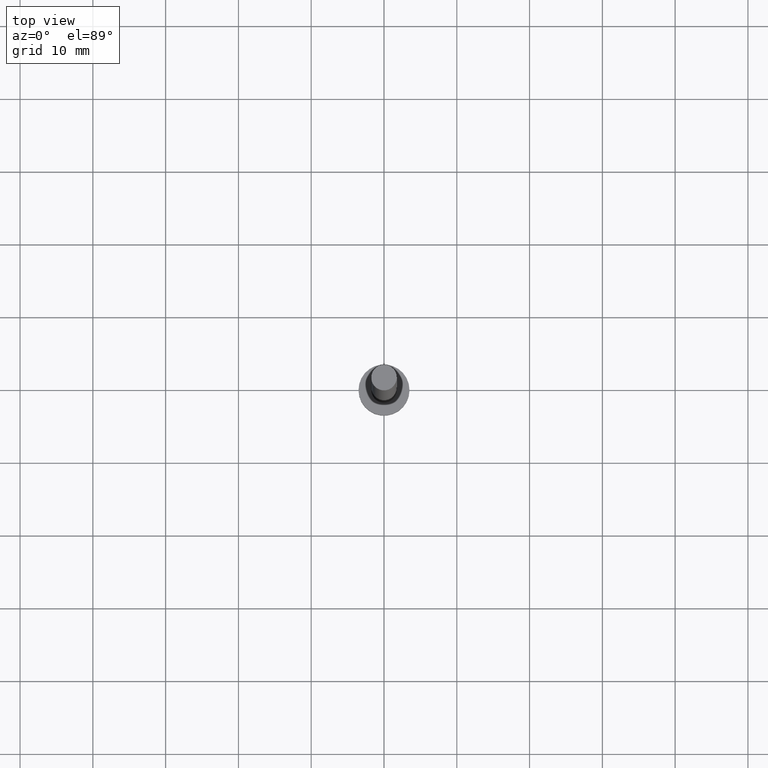
[diagram: clean part render]
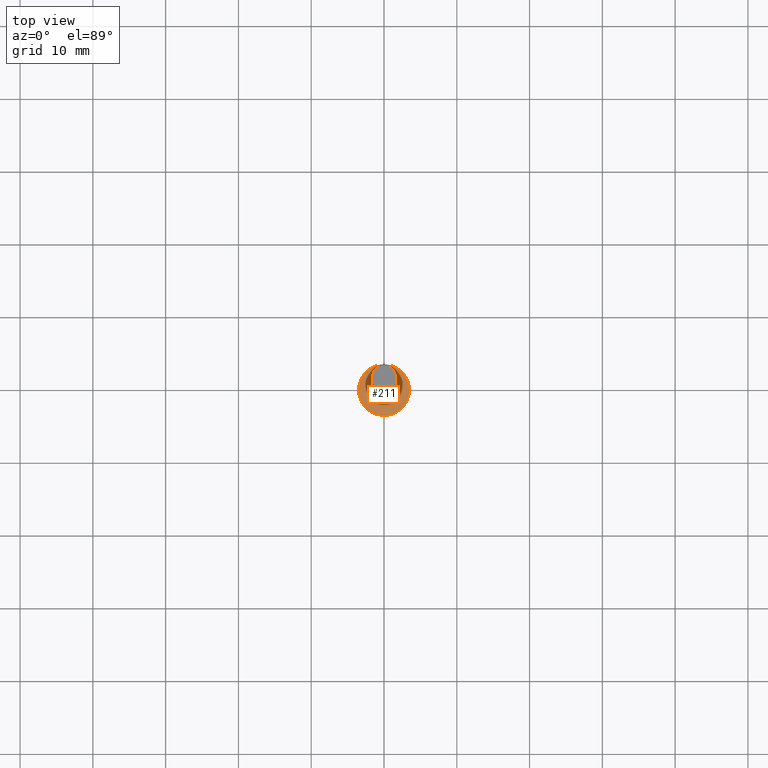
[diagram: same view with one face highlighted and labeled with its STEP entity id]
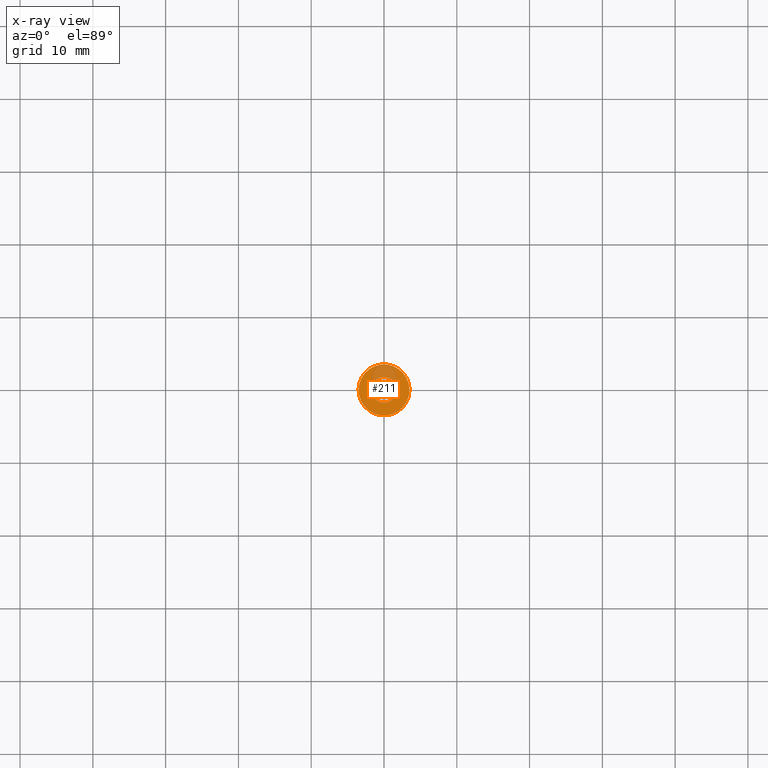
[diagram: x-ray of the same camera — body ghosted, the highlighted face saturated]
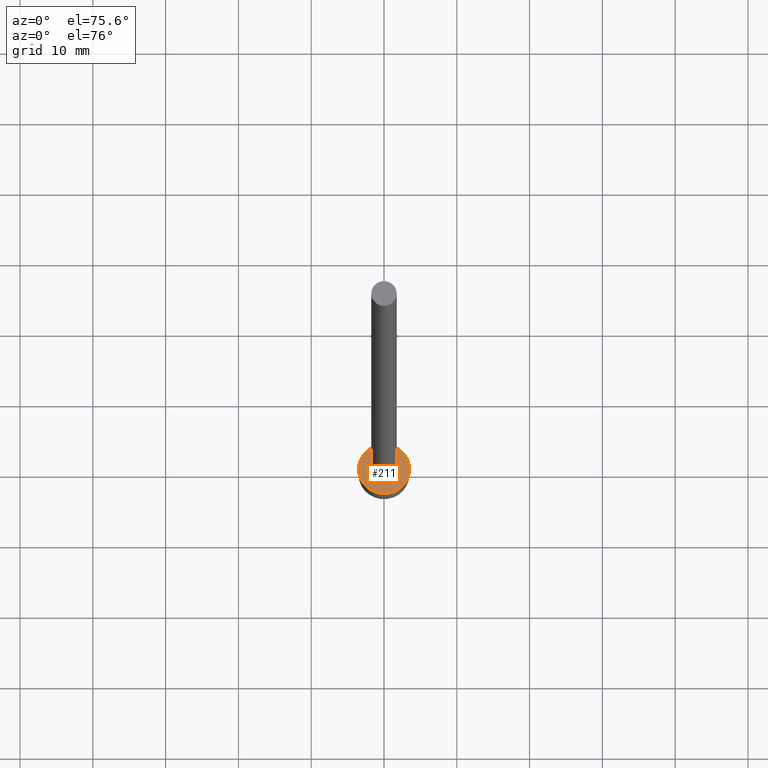
[diagram: same view with one face highlighted and labeled with its STEP entity id]
A machine part, top view. The second image highlights one B-rep face of the part: STEP entity #211.
The next image is the same camera in x-ray: the body ghosted, the highlighted face saturated — about 21% of this face is hidden behind the body in this view.
A second angle (auxiliary view) of the same face is appended — the face is thin or edge-on in the first view.
In plain terms, the highlighted planar face has unit normal (0, 0, 1).
Its self-contained STEP definition (entity closure, byte-faithful):
#3 = FACE_BOUND ( 'NONE', #95, .T. ) ;
#5 = CARTESIAN_POINT ( 'NONE',  ( 0.000000000000000000, 0.000000000000000000, 3.000000000000000000 ) ) ;
#6 = CIRCLE ( 'NONE', #126, 3.500000000000000444 ) ;
#8 = DIRECTION ( 'NONE',  ( 1.000000000000000000, 0.000000000000000000, 0.000000000000000000 ) ) ;
#21 = EDGE_CURVE ( 'NONE', #230, #169, #223, .T. ) ;
#37 = AXIS2_PLACEMENT_3D ( 'NONE', #237, #240, #188 ) ;
#40 = AXIS2_PLACEMENT_3D ( 'NONE', #235, #65, #140 ) ;
#41 = CARTESIAN_POINT ( 'NONE',  ( 0.000000000000000000, 0.000000000000000000, 3.000000000000000000 ) ) ;
#42 = DIRECTION ( 'NONE',  ( 1.000000000000000000, 0.000000000000000000, 0.000000000000000000 ) ) ;
#46 = CARTESIAN_POINT ( 'NONE',  ( -1.750000000000000000, 0.000000000000000000, 3.000000000000000000 ) ) ;
#51 = CARTESIAN_POINT ( 'NONE',  ( 1.750000000000000000, 2.143131898507867804E-16, 3.000000000000000000 ) ) ;
#54 = EDGE_CURVE ( 'NONE', #118, #121, #6, .T. ) ;
#55 = CIRCLE ( 'NONE', #82, 3.500000000000000444 ) ;
#59 = ORIENTED_EDGE ( 'NONE', *, *, #198, .F. ) ;
#62 = DIRECTION ( 'NONE',  ( 0.000000000000000000, 0.000000000000000000, 1.000000000000000000 ) ) ;
#65 = DIRECTION ( 'NONE',  ( 0.000000000000000000, 0.000000000000000000, 1.000000000000000000 ) ) ;
#66 = CARTESIAN_POINT ( 'NONE',  ( 0.000000000000000000, 0.000000000000000000, 3.000000000000000000 ) ) ;
#69 = EDGE_LOOP ( 'NONE', ( #159, #214 ) ) ;
#82 = AXIS2_PLACEMENT_3D ( 'NONE', #5, #200, #8 ) ;
#84 = FACE_OUTER_BOUND ( 'NONE', #69, .T. ) ;
#95 = EDGE_LOOP ( 'NONE', ( #59, #229 ) ) ;
#118 = VERTEX_POINT ( 'NONE', #255 ) ;
#121 = VERTEX_POINT ( 'NONE', #162 ) ;
#126 = AXIS2_PLACEMENT_3D ( 'NONE', #41, #62, #42 ) ;
#138 = EDGE_CURVE ( 'NONE', #121, #118, #55, .T. ) ;
#140 = DIRECTION ( 'NONE',  ( 1.000000000000000000, 0.000000000000000000, 0.000000000000000000 ) ) ;
#142 = DIRECTION ( 'NONE',  ( 0.000000000000000000, 0.000000000000000000, 1.000000000000000000 ) ) ;
#144 = PLANE ( 'NONE',  #239 ) ;
#159 = ORIENTED_EDGE ( 'NONE', *, *, #54, .T. ) ;
#162 = CARTESIAN_POINT ( 'NONE',  ( 3.500000000000000444, 4.286263797015737088E-16, 3.000000000000000000 ) ) ;
#169 = VERTEX_POINT ( 'NONE', #46 ) ;
#188 = DIRECTION ( 'NONE',  ( 1.000000000000000000, 0.000000000000000000, 0.000000000000000000 ) ) ;
#198 = EDGE_CURVE ( 'NONE', #169, #230, #206, .T. ) ;
#200 = DIRECTION ( 'NONE',  ( 0.000000000000000000, 0.000000000000000000, 1.000000000000000000 ) ) ;
#206 = CIRCLE ( 'NONE', #37, 1.750000000000000000 ) ;
#211 = ADVANCED_FACE ( 'NONE', ( #3, #84 ), #144, .T. ) ;
#214 = ORIENTED_EDGE ( 'NONE', *, *, #138, .T. ) ;
#222 = DIRECTION ( 'NONE',  ( 1.000000000000000000, 0.000000000000000000, -0.000000000000000000 ) ) ;
#223 = CIRCLE ( 'NONE', #40, 1.750000000000000000 ) ;
#229 = ORIENTED_EDGE ( 'NONE', *, *, #21, .F. ) ;
#230 = VERTEX_POINT ( 'NONE', #51 ) ;
#235 = CARTESIAN_POINT ( 'NONE',  ( 0.000000000000000000, 0.000000000000000000, 3.000000000000000000 ) ) ;
#237 = CARTESIAN_POINT ( 'NONE',  ( 0.000000000000000000, 0.000000000000000000, 3.000000000000000000 ) ) ;
#239 = AXIS2_PLACEMENT_3D ( 'NONE', #66, #142, #222 ) ;
#240 = DIRECTION ( 'NONE',  ( 0.000000000000000000, 0.000000000000000000, 1.000000000000000000 ) ) ;
#255 = CARTESIAN_POINT ( 'NONE',  ( -3.500000000000000444, 0.000000000000000000, 3.000000000000000000 ) ) ;